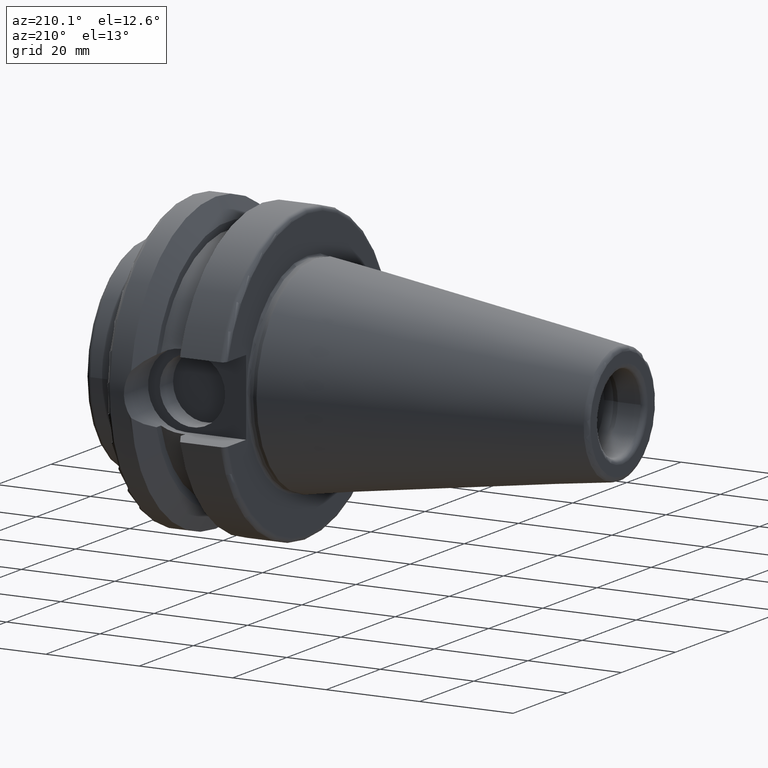
[diagram: clean part render]
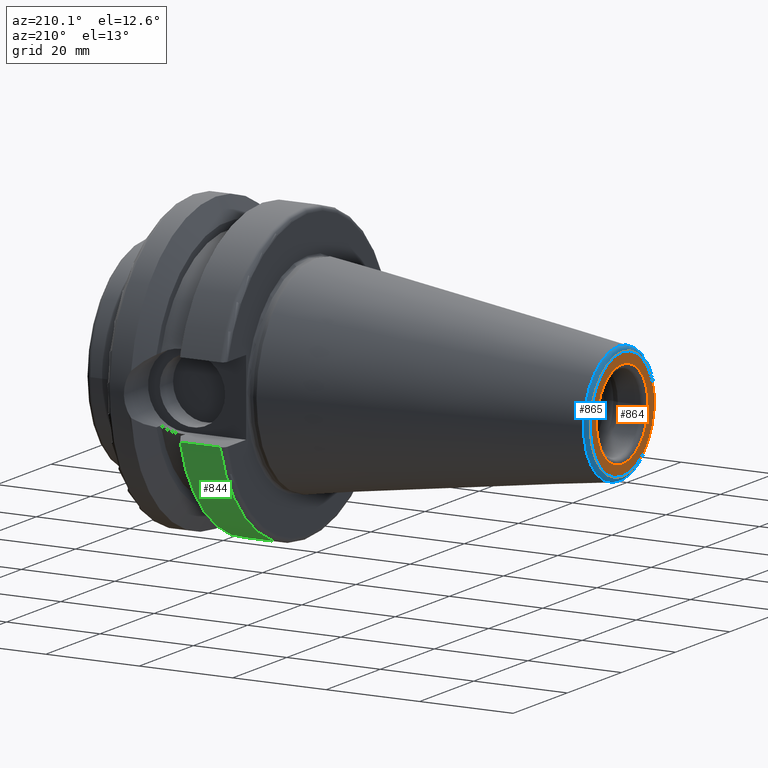
[diagram: same view with three faces highlighted in distinct colors, each labeled with its STEP entity id]
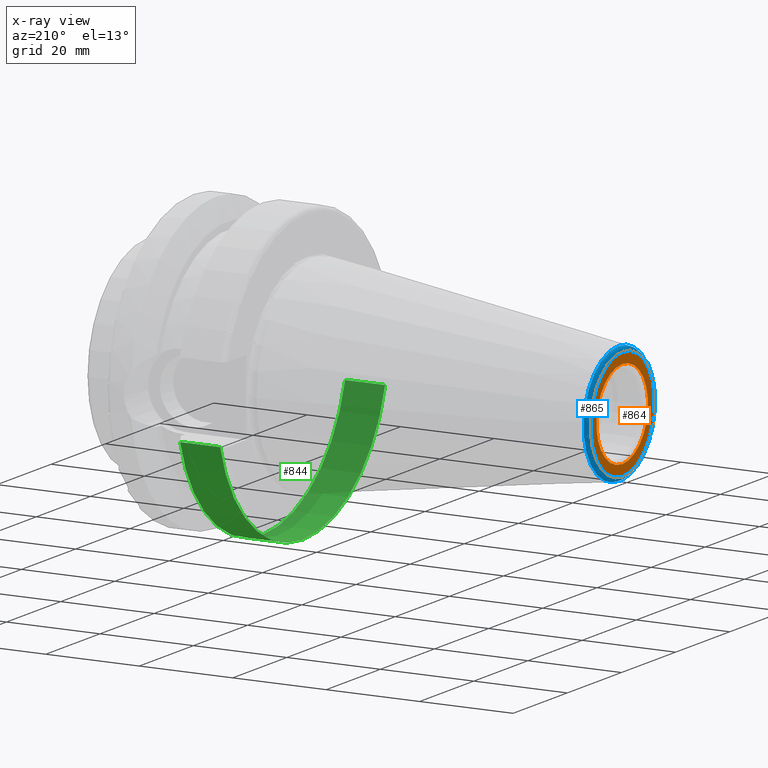
[diagram: x-ray of the same camera — body ghosted, the three highlighted faces saturated]
A machine part, auxiliary view with three faces highlighted in distinct colors.
The next image is the same camera in x-ray (body ghosted, the three faces saturated) — at least one of them is partly hidden behind the body in this view.
Their STEP definitions:

[orange] entity #864 — the highlighted planar face has unit normal (-1, 0, 0).
#36=FACE_BOUND('',#187,.T.);
#80=PLANE('',#990);
#126=FACE_OUTER_BOUND('',#186,.T.);
#186=EDGE_LOOP('',(#777));
#187=EDGE_LOOP('',(#778));
#331=CIRCLE('',#988,9.5);
#333=CIRCLE('',#991,11.8227555970304);
#417=VERTEX_POINT('',#1653);
#418=VERTEX_POINT('',#1657);
#537=EDGE_CURVE('',#417,#417,#331,.T.);
#539=EDGE_CURVE('',#418,#418,#333,.T.);
#777=ORIENTED_EDGE('',*,*,#539,.F.);
#778=ORIENTED_EDGE('',*,*,#537,.T.);
#864=ADVANCED_FACE('',(#126,#36),#80,.T.);
#988=AXIS2_PLACEMENT_3D('',#1654,#1238,#1239);
#990=AXIS2_PLACEMENT_3D('',#1656,#1242,#1243);
#991=AXIS2_PLACEMENT_3D('',#1658,#1244,#1245);
#1238=DIRECTION('center_axis',(1.,0.,0.));
#1239=DIRECTION('ref_axis',(0.,0.,-1.));
#1242=DIRECTION('center_axis',(-1.,0.,0.));
#1243=DIRECTION('ref_axis',(0.,0.,1.));
#1244=DIRECTION('center_axis',(1.,0.,0.));
#1245=DIRECTION('ref_axis',(0.,0.,-1.));
#1653=CARTESIAN_POINT('',(-65.4,-1.16341445918999E-15,9.5));
#1654=CARTESIAN_POINT('Origin',(-65.4,0.,0.));
#1656=CARTESIAN_POINT('Origin',(-65.4,11.8227555970304,0.));
#1657=CARTESIAN_POINT('',(-65.4,-1.44786997990048E-15,11.8227555970304));
#1658=CARTESIAN_POINT('Origin',(-65.4,0.,0.));

[blue] entity #865 — the highlighted toroidal blend (fillet) surface has major radius 11.8228 mm and minor (blend) radius 1 mm.
#44=TOROIDAL_SURFACE('',#992,11.8227555970304,0.999999999999996);
#127=FACE_OUTER_BOUND('',#188,.T.);
#188=EDGE_LOOP('',(#779,#780,#781,#782,#783));
#333=CIRCLE('',#991,11.8227555970304);
#334=CIRCLE('',#993,12.8122885780937);
#335=CIRCLE('',#994,12.8122885780937);
#336=CIRCLE('',#995,0.999999999999996);
#418=VERTEX_POINT('',#1657);
#419=VERTEX_POINT('',#1660);
#420=VERTEX_POINT('',#1661);
#539=EDGE_CURVE('',#418,#418,#333,.T.);
#540=EDGE_CURVE('',#419,#420,#334,.T.);
#541=EDGE_CURVE('',#420,#419,#335,.T.);
#542=EDGE_CURVE('',#420,#418,#336,.T.);
#779=ORIENTED_EDGE('',*,*,#540,.F.);
#780=ORIENTED_EDGE('',*,*,#541,.F.);
#781=ORIENTED_EDGE('',*,*,#542,.T.);
#782=ORIENTED_EDGE('',*,*,#539,.T.);
#783=ORIENTED_EDGE('',*,*,#542,.F.);
#865=ADVANCED_FACE('',(#127),#44,.T.);
#991=AXIS2_PLACEMENT_3D('',#1658,#1244,#1245);
#992=AXIS2_PLACEMENT_3D('',#1659,#1246,#1247);
#993=AXIS2_PLACEMENT_3D('',#1662,#1248,#1249);
#994=AXIS2_PLACEMENT_3D('',#1663,#1250,#1251);
#995=AXIS2_PLACEMENT_3D('',#1664,#1252,#1253);
#1244=DIRECTION('center_axis',(1.,0.,0.));
#1245=DIRECTION('ref_axis',(0.,0.,-1.));
#1246=DIRECTION('center_axis',(1.,0.,0.));
#1247=DIRECTION('ref_axis',(0.,0.,-1.));
#1248=DIRECTION('center_axis',(1.,0.,0.));
#1249=DIRECTION('ref_axis',(0.,0.,-1.));
#1250=DIRECTION('center_axis',(1.,0.,0.));
#1251=DIRECTION('ref_axis',(0.,0.,-1.));
#1252=DIRECTION('center_axis',(0.,-1.,-1.22464679914735E-16));
#1253=DIRECTION('ref_axis',(0.,-1.22464679914735E-16,1.));
#1657=CARTESIAN_POINT('',(-65.4,-1.44786997990048E-15,11.8227555970304));
#1658=CARTESIAN_POINT('Origin',(-65.4,0.,0.));
#1659=CARTESIAN_POINT('Origin',(-64.4,0.,0.));
#1660=CARTESIAN_POINT('',(-64.5443068930717,-12.8122885780937,-1.56905281969147E-15));
#1661=CARTESIAN_POINT('',(-64.5443068930717,-1.56905281969147E-15,12.8122885780937));
#1662=CARTESIAN_POINT('Origin',(-64.5443068930717,0.,0.));
#1663=CARTESIAN_POINT('Origin',(-64.5443068930717,0.,0.));
#1664=CARTESIAN_POINT('Origin',(-64.4,-1.44786997990048E-15,11.8227555970304));

[green] entity #844 — the highlighted cylindrical surface (partial cylindrical patch) has radius 31.5 mm, axis along (1, 0, 0).
#106=FACE_OUTER_BOUND('',#163,.T.);
#163=EDGE_LOOP('',(#674,#675,#676,#677));
#212=LINE('',#1484,#256);
#219=LINE('',#1549,#263);
#256=VECTOR('',#1110,10.);
#263=VECTOR('',#1153,10.);
#313=CIRCLE('',#950,31.5000000000001);
#314=CIRCLE('',#952,31.5);
#384=VERTEX_POINT('',#1472);
#385=VERTEX_POINT('',#1483);
#396=VERTEX_POINT('',#1541);
#397=VERTEX_POINT('',#1547);
#479=EDGE_CURVE('',#385,#384,#212,.T.);
#498=EDGE_CURVE('',#385,#396,#313,.T.);
#500=EDGE_CURVE('',#384,#397,#314,.T.);
#501=EDGE_CURVE('',#397,#396,#219,.T.);
#674=ORIENTED_EDGE('',*,*,#479,.T.);
#675=ORIENTED_EDGE('',*,*,#500,.T.);
#676=ORIENTED_EDGE('',*,*,#501,.T.);
#677=ORIENTED_EDGE('',*,*,#498,.F.);
#812=CYLINDRICAL_SURFACE('',#951,31.5);
#844=ADVANCED_FACE('',(#106),#812,.T.);
#950=AXIS2_PLACEMENT_3D('',#1542,#1147,#1148);
#951=AXIS2_PLACEMENT_3D('',#1546,#1149,#1150);
#952=AXIS2_PLACEMENT_3D('',#1548,#1151,#1152);
#1110=DIRECTION('',(-1.,0.,0.));
#1147=DIRECTION('center_axis',(1.,0.,0.));
#1148=DIRECTION('ref_axis',(0.,0.,-1.));
#1149=DIRECTION('center_axis',(1.,0.,0.));
#1150=DIRECTION('ref_axis',(0.,1.,0.));
#1151=DIRECTION('center_axis',(1.,0.,0.));
#1152=DIRECTION('ref_axis',(0.,0.,-1.));
#1153=DIRECTION('',(1.,0.,0.));
#1472=CARTESIAN_POINT('',(2.99999999999999,-30.4540227227866,-8.05));
#1483=CARTESIAN_POINT('',(11.5690363073382,-30.4540227227866,-8.05));
#1484=CARTESIAN_POINT('',(7.28451815366907,-30.4540227227866,-8.05));
#1541=CARTESIAN_POINT('',(11.5690363073382,30.4540227227866,-8.05));
#1542=CARTESIAN_POINT('Origin',(11.5690363073382,0.,0.));
#1546=CARTESIAN_POINT('Origin',(7.28451815366907,0.,0.));
#1547=CARTESIAN_POINT('',(2.99999999999999,30.4540227227866,-8.05));
#1548=CARTESIAN_POINT('Origin',(2.99999999999999,0.,0.));
#1549=CARTESIAN_POINT('',(7.28451815366907,30.4540227227866,-8.05));